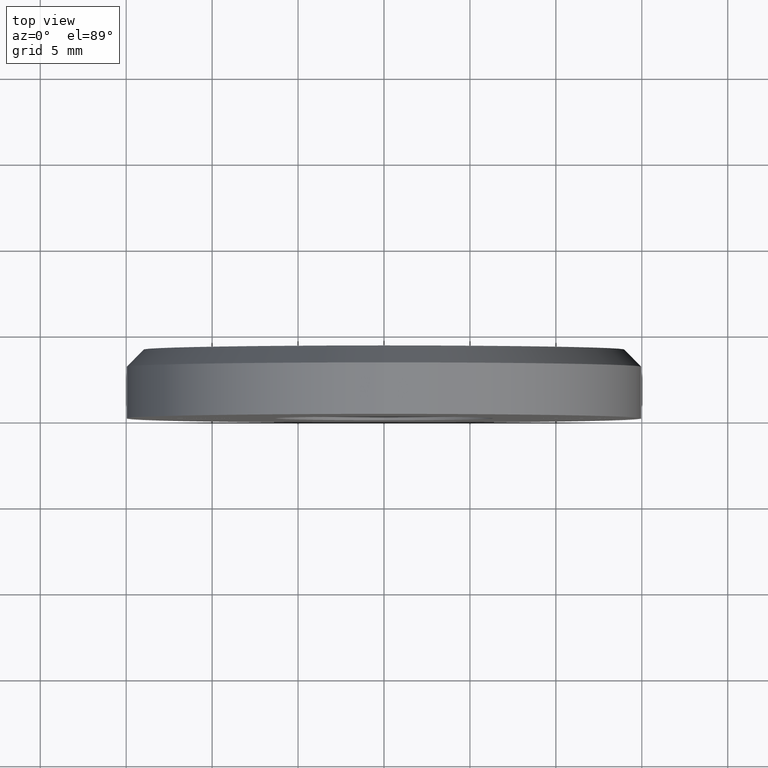
[diagram: clean part render]
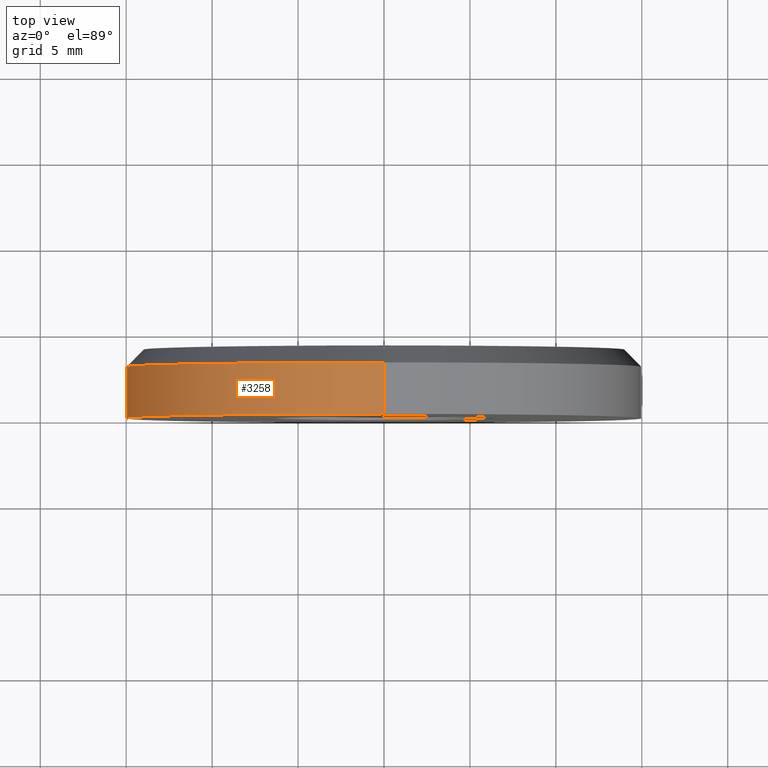
[diagram: same view with one face highlighted and labeled with its STEP entity id]
A machine part, top view. The second image highlights one B-rep face of the part: STEP entity #3258.
In plain terms, the highlighted cylindrical surface (partial cylindrical patch) has radius 15 mm, axis along (-0, -1, -0).
Its self-contained STEP definition (entity closure, byte-faithful):
#76 = DIRECTION ( 'NONE',  ( 0.000000000000000000, 0.000000000000000000, -1.000000000000000000 ) ) ;
#864 = CARTESIAN_POINT ( 'NONE',  ( 0.000000000000000000, 4.000000000000000000, -15.00000000000000000 ) ) ;
#1231 = DIRECTION ( 'NONE',  ( 0.000000000000000000, 1.000000000000000000, 0.000000000000000000 ) ) ;
#1311 = LINE ( 'NONE', #864, #8205 ) ;
#2662 = DIRECTION ( 'NONE',  ( -0.000000000000000000, -1.000000000000000000, -0.000000000000000000 ) ) ;
#2721 = EDGE_CURVE ( 'NONE', #6092, #6575, #1311, .T. ) ;
#3182 = CIRCLE ( 'NONE', #7829, 15.00000000000000000 ) ;
#3197 = ORIENTED_EDGE ( 'NONE', *, *, #2721, .T. ) ;
#3258 = ADVANCED_FACE ( 'NONE', ( #4552 ), #10867, .T. ) ;
#4486 = LINE ( 'NONE', #6177, #13828 ) ;
#4552 = FACE_OUTER_BOUND ( 'NONE', #5243, .T. ) ;
#4872 = CARTESIAN_POINT ( 'NONE',  ( 0.000000000000000000, 0.000000000000000000, 0.000000000000000000 ) ) ;
#5044 = AXIS2_PLACEMENT_3D ( 'NONE', #7370, #6039, #76 ) ;
#5164 = CARTESIAN_POINT ( 'NONE',  ( 0.000000000000000000, 2.999999999999985345, 0.000000000000000000 ) ) ;
#5243 = EDGE_LOOP ( 'NONE', ( #7234, #8088, #3197, #6643 ) ) ;
#6039 = DIRECTION ( 'NONE',  ( -0.000000000000000000, -1.000000000000000000, -0.000000000000000000 ) ) ;
#6092 = VERTEX_POINT ( 'NONE', #12982 ) ;
#6177 = CARTESIAN_POINT ( 'NONE',  ( 1.836970198721029589E-15, 4.000000000000000000, 15.00000000000000000 ) ) ;
#6575 = VERTEX_POINT ( 'NONE', #11081 ) ;
#6643 = ORIENTED_EDGE ( 'NONE', *, *, #8540, .T. ) ;
#7234 = ORIENTED_EDGE ( 'NONE', *, *, #8256, .F. ) ;
#7370 = CARTESIAN_POINT ( 'NONE',  ( 0.000000000000000000, 4.000000000000000000, 0.000000000000000000 ) ) ;
#7829 = AXIS2_PLACEMENT_3D ( 'NONE', #4872, #1231, #9689 ) ;
#8088 = ORIENTED_EDGE ( 'NONE', *, *, #9796, .T. ) ;
#8205 = VECTOR ( 'NONE', #8249, 1000.000000000000000 ) ;
#8249 = DIRECTION ( 'NONE',  ( -0.000000000000000000, -1.000000000000000000, -0.000000000000000000 ) ) ;
#8256 = EDGE_CURVE ( 'NONE', #8459, #9419, #4486, .T. ) ;
#8459 = VERTEX_POINT ( 'NONE', #10656 ) ;
#8540 = EDGE_CURVE ( 'NONE', #6575, #9419, #3182, .T. ) ;
#9419 = VERTEX_POINT ( 'NONE', #11204 ) ;
#9689 = DIRECTION ( 'NONE',  ( 0.000000000000000000, 0.000000000000000000, 1.000000000000000000 ) ) ;
#9796 = EDGE_CURVE ( 'NONE', #8459, #6092, #15081, .T. ) ;
#10656 = CARTESIAN_POINT ( 'NONE',  ( 1.836970198721029589E-15, 2.999999999999985345, 15.00000000000000000 ) ) ;
#10867 = CYLINDRICAL_SURFACE ( 'NONE', #5044, 15.00000000000000000 ) ;
#11081 = CARTESIAN_POINT ( 'NONE',  ( 0.000000000000000000, 0.000000000000000000, -15.00000000000000000 ) ) ;
#11189 = DIRECTION ( 'NONE',  ( 0.000000000000000000, 0.000000000000000000, 1.000000000000000000 ) ) ;
#11204 = CARTESIAN_POINT ( 'NONE',  ( 1.836970198721029589E-15, 0.000000000000000000, 15.00000000000000000 ) ) ;
#11305 = AXIS2_PLACEMENT_3D ( 'NONE', #5164, #13696, #11189 ) ;
#12982 = CARTESIAN_POINT ( 'NONE',  ( 0.000000000000000000, 2.999999999999985345, -15.00000000000000000 ) ) ;
#13696 = DIRECTION ( 'NONE',  ( 0.000000000000000000, -1.000000000000000000, 0.000000000000000000 ) ) ;
#13828 = VECTOR ( 'NONE', #2662, 1000.000000000000000 ) ;
#15081 = CIRCLE ( 'NONE', #11305, 15.00000000000000000 ) ;